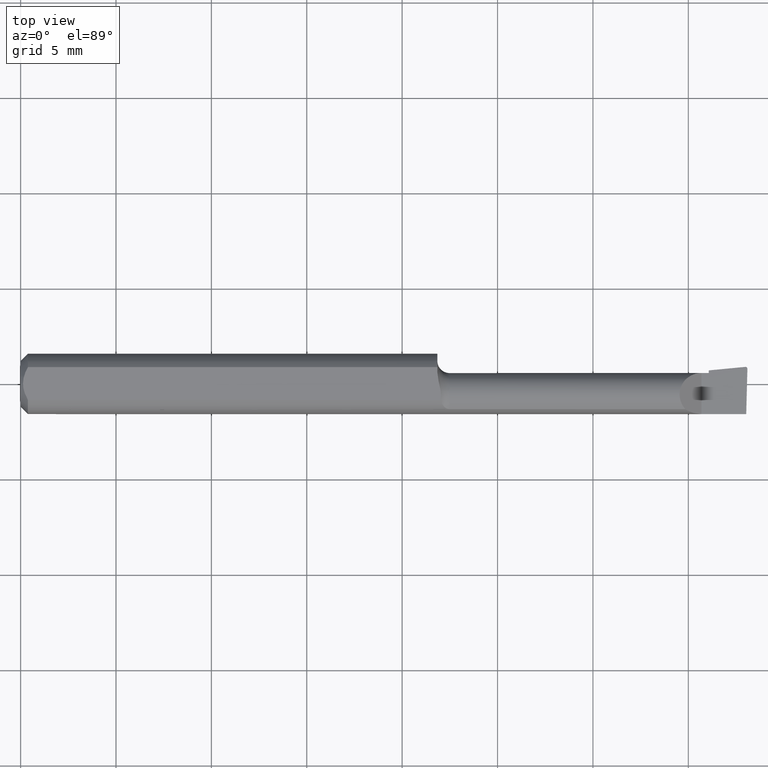
[diagram: clean part render]
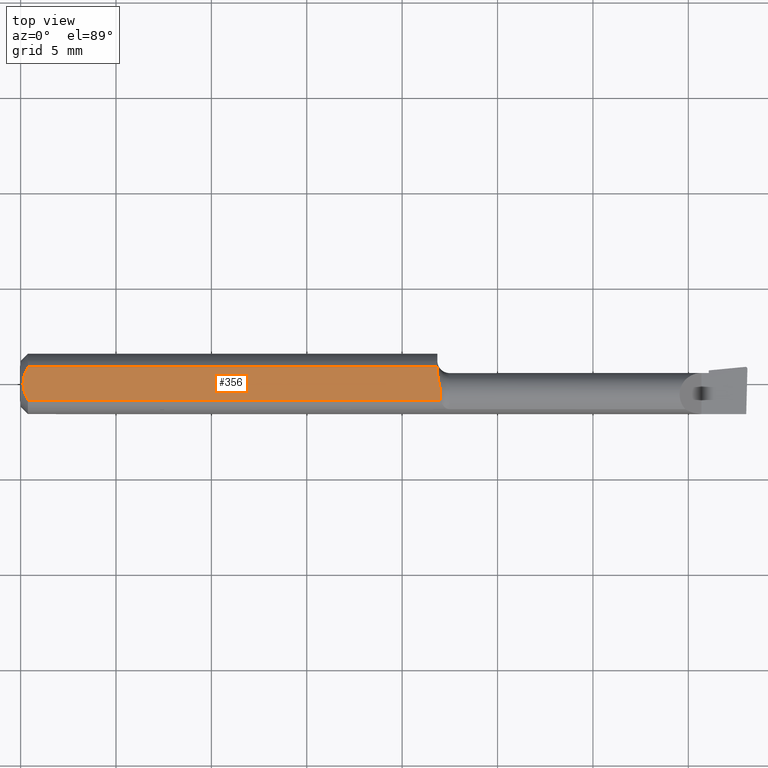
[diagram: same view with one face highlighted and labeled with its STEP entity id]
A machine part, top view. The second image highlights one B-rep face of the part: STEP entity #356.
In plain terms, the highlighted planar face has unit normal (0, -0, -1).
Its self-contained STEP definition (entity closure, byte-faithful):
#18 = EDGE_CURVE ( 'NONE', #490, #111, #426, .T. ) ;
#22 = CARTESIAN_POINT ( 'NONE',  ( 0.004999999999989931769, 7.898418181085889318E-16, 0.05235000000000000070 ) ) ;
#24 = CARTESIAN_POINT ( 'NONE',  ( 0.8636403934954570705, 0.0002918085034137515572, 0.05234999999999998682 ) ) ;
#27 = VECTOR ( 'NONE', #268, 39.37007874015748143 ) ;
#52 = CARTESIAN_POINT ( 'NONE',  ( 0.01500000000000185039, -0.03386738844380016850, 0.05235000000000000070 ) ) ;
#58 = LINE ( 'NONE', #466, #635 ) ;
#62 = LINE ( 'NONE', #533, #27 ) ;
#70 = CARTESIAN_POINT ( 'NONE',  ( 0.006064493299689842180, 0.01189382783781397189, 0.05235000000000000070 ) ) ;
#71 = CARTESIAN_POINT ( 'NONE',  ( 1.500000000000000222, 0.1123499999999999915, 0.05234999999999998682 ) ) ;
#87 = EDGE_LOOP ( 'NONE', ( #573, #126, #229, #243, #667, #617 ) ) ;
#89 = CARTESIAN_POINT ( 'NONE',  ( 0.8600000000000000977, 0.1123499999999999915, 0.05234999999999998682 ) ) ;
#95 = CARTESIAN_POINT ( 'NONE',  ( 0.01500000000000185039, -0.03386738844380016850, 0.05235000000000000070 ) ) ;
#96 = VERTEX_POINT ( 'NONE', #532 ) ;
#101 = AXIS2_PLACEMENT_3D ( 'NONE', #71, #493, #170 ) ;
#103 = CARTESIAN_POINT ( 'NONE',  ( 0.8661821896890746775, -0.03386738844375222074, 0.05235000000000000070 ) ) ;
#105 = CARTESIAN_POINT ( 'NONE',  ( 0.01216137397042175820, -0.02864146636719541034, 0.05235000000000000070 ) ) ;
#106 = EDGE_CURVE ( 'NONE', #96, #490, #62, .T. ) ;
#111 = VERTEX_POINT ( 'NONE', #220 ) ;
#121 = EDGE_CURVE ( 'NONE', #456, #185, #642, .T. ) ;
#126 = ORIENTED_EDGE ( 'NONE', *, *, #18, .F. ) ;
#147 = CARTESIAN_POINT ( 'NONE',  ( 0.8599999999999998757, 0.01903747135664263929, 0.05235000000000001458 ) ) ;
#170 = DIRECTION ( 'NONE',  ( 0.0000000000000000000, 1.000000000000000000, -7.598598113218357399E-17 ) ) ;
#184 = DIRECTION ( 'NONE',  ( 5.691349986800549142E-18, -1.000000000000000000, 7.598598113218357399E-17 ) ) ;
#185 = VERTEX_POINT ( 'NONE', #205 ) ;
#199 = CARTESIAN_POINT ( 'NONE',  ( 0.01218518006020415795, 0.02868529347538067639, 0.05235000000000000070 ) ) ;
#205 = CARTESIAN_POINT ( 'NONE',  ( 0.004999999999989931769, 7.898418181085889318E-16, 0.05235000000000000070 ) ) ;
#211 = CARTESIAN_POINT ( 'NONE',  ( 0.009669996313769784607, 0.02323004575534281385, 0.05234999999999998682 ) ) ;
#220 = CARTESIAN_POINT ( 'NONE',  ( 0.8600000000000000977, 0.02414546164772663275, 0.05235000000000000070 ) ) ;
#229 = ORIENTED_EDGE ( 'NONE', *, *, #106, .F. ) ;
#243 = ORIENTED_EDGE ( 'NONE', *, *, #474, .F. ) ;
#247 = CARTESIAN_POINT ( 'NONE',  ( 0.8639433730835746061, -0.0009488278625737159733, 0.05234999999999998682 ) ) ;
#261 = DIRECTION ( 'NONE',  ( -1.000000000000000000, -0.0000000000000000000, -0.0000000000000000000 ) ) ;
#268 = DIRECTION ( 'NONE',  ( 1.000000000000000000, 0.0000000000000000000, 0.0000000000000000000 ) ) ;
#269 = B_SPLINE_CURVE_WITH_KNOTS ( 'NONE', 3,
 ( #22, #420, #70, #211, #199, #370 ),
 .UNSPECIFIED., .F., .F.,
 ( 4, 2, 4 ),
 ( 0.003037199019464981685, 0.003488061124369676216, 0.003938923229274370746 ),
 .UNSPECIFIED. ) ;
#301 = CARTESIAN_POINT ( 'NONE',  ( 0.8606843363331831975, 0.01400540109987307574, 0.05235000000000000070 ) ) ;
#322 = CARTESIAN_POINT ( 'NONE',  ( 0.009678036133109307534, -0.02325481837211496039, 0.05235000000000000070 ) ) ;
#356 = ADVANCED_FACE ( 'NONE', ( #616 ), #391, .F. ) ;
#370 = CARTESIAN_POINT ( 'NONE',  ( 0.01500000000000000465, 0.03386738844375223462, 0.05234999999999997988 ) ) ;
#371 = CARTESIAN_POINT ( 'NONE',  ( 0.006057557792978140489, -0.01187252718384441616, 0.05234999999999998682 ) ) ;
#374 = VERTEX_POINT ( 'NONE', #103 ) ;
#383 = CARTESIAN_POINT ( 'NONE',  ( 0.8600000000000000977, 0.02414546164772663275, 0.05235000000000000070 ) ) ;
#391 = PLANE ( 'NONE',  #101 ) ;
#393 = CARTESIAN_POINT ( 'NONE',  ( 0.8627471345220282251, 0.004017454403653700039, 0.05235000000000000070 ) ) ;
#410 = CARTESIAN_POINT ( 'NONE',  ( 0.8670657631504199436, -0.02914627190158990133, 0.05235000000000000764 ) ) ;
#414 = CARTESIAN_POINT ( 'NONE',  ( 0.8675168895146677661, -0.02435447415594422377, 0.05235000000000000070 ) ) ;
#420 = CARTESIAN_POINT ( 'NONE',  ( 0.004999999999999268051, 0.005945714695019511074, 0.05235000000000000070 ) ) ;
#426 = LINE ( 'NONE', #89, #440 ) ;
#440 = VECTOR ( 'NONE', #184, 39.37007874015748143 ) ;
#456 = VERTEX_POINT ( 'NONE', #95 ) ;
#466 = CARTESIAN_POINT ( 'NONE',  ( 0.0000000000000000000, -0.03386738844375222768, 0.05234999999999997988 ) ) ;
#474 = EDGE_CURVE ( 'NONE', #185, #96, #269, .T. ) ;
#490 = VERTEX_POINT ( 'NONE', #610 ) ;
#491 = EDGE_CURVE ( 'NONE', #111, #374, #592, .T. ) ;
#493 = DIRECTION ( 'NONE',  ( 0.0000000000000000000, -7.598598113218357399E-17, -1.000000000000000000 ) ) ;
#496 = CARTESIAN_POINT ( 'NONE',  ( 0.8670297040742722672, -0.01497150789875728583, 0.05235000000000000070 ) ) ;
#498 = CARTESIAN_POINT ( 'NONE',  ( 0.8661821896890746775, -0.03386738844375222074, 0.05235000000000000070 ) ) ;
#523 = CARTESIAN_POINT ( 'NONE',  ( 0.004999999999989931769, 7.898418181085889318E-16, 0.05235000000000000070 ) ) ;
#524 = CARTESIAN_POINT ( 'NONE',  ( 0.004999999999998879473, -0.005957634400466955450, 0.05235000000000000070 ) ) ;
#532 = CARTESIAN_POINT ( 'NONE',  ( 0.01500000000000000465, 0.03386738844375223462, 0.05234999999999997988 ) ) ;
#533 = CARTESIAN_POINT ( 'NONE',  ( 0.0000000000000000000, 0.03386738844375223462, 0.05234999999999997988 ) ) ;
#545 = CARTESIAN_POINT ( 'NONE',  ( 0.8648180388757457093, -0.004579228880846317185, 0.05235000000000001458 ) ) ;
#562 = CARTESIAN_POINT ( 'NONE',  ( 0.8645436151954090098, -0.003431463083333099150, 0.05235000000000000764 ) ) ;
#573 = ORIENTED_EDGE ( 'NONE', *, *, #491, .F. ) ;
#574 = EDGE_CURVE ( 'NONE', #374, #456, #58, .T. ) ;
#592 = B_SPLINE_CURVE_WITH_KNOTS ( 'NONE', 3,
 ( #383, #147, #301, #644, #393, #24, #247, #562, #545, #607, #496, #414, #410, #498 ),
 .UNSPECIFIED., .F., .F.,
 ( 4, 2, 2, 2, 2, 2, 4 ),
 ( 0.008234143088603516208, 0.008591734916881393902, 0.008770530831020331014, 0.008859928788089799570, 0.008949326745159268126, 0.009306918573437144085, 0.009664510401715020044 ),
 .UNSPECIFIED. ) ;
#607 = CARTESIAN_POINT ( 'NONE',  ( 0.8661447494546045123, -0.01034308142135324619, 0.05235000000000000070 ) ) ;
#610 = CARTESIAN_POINT ( 'NONE',  ( 0.8600000000000000977, 0.03386738844375224156, 0.05235000000000000070 ) ) ;
#616 = FACE_OUTER_BOUND ( 'NONE', #87, .T. ) ;
#617 = ORIENTED_EDGE ( 'NONE', *, *, #574, .F. ) ;
#635 = VECTOR ( 'NONE', #261, 39.37007874015748143 ) ;
#642 = B_SPLINE_CURVE_WITH_KNOTS ( 'NONE', 3,
 ( #52, #105, #322, #371, #524, #523 ),
 .UNSPECIFIED., .F., .F.,
 ( 4, 2, 4 ),
 ( 0.002133667072902290657, 0.002585433046183636171, 0.003037199019464981685 ),
 .UNSPECIFIED. ) ;
#644 = CARTESIAN_POINT ( 'NONE',  ( 0.8621728268178152632, 0.006508548278878100585, 0.05235000000000000070 ) ) ;
#667 = ORIENTED_EDGE ( 'NONE', *, *, #121, .F. ) ;